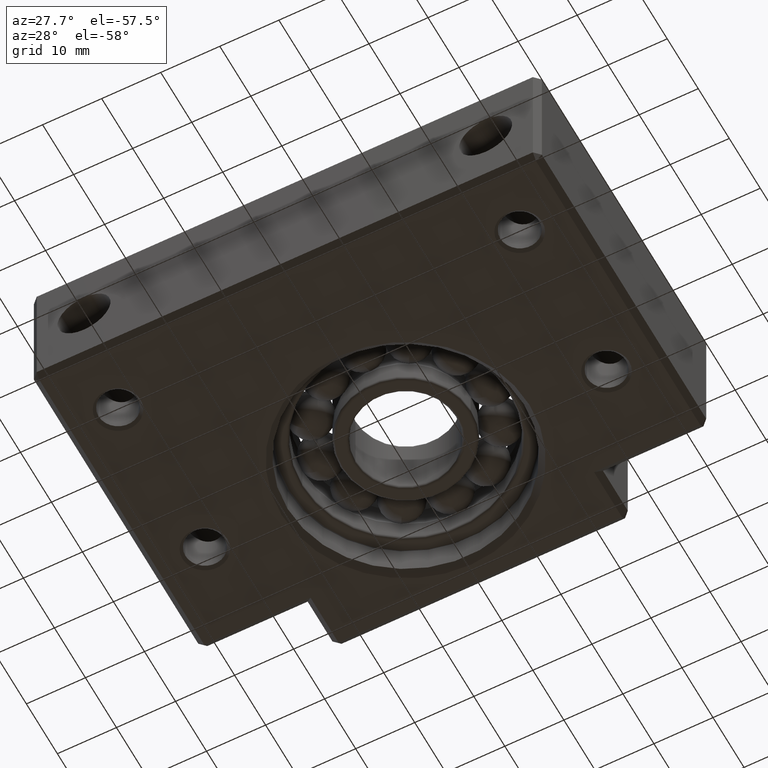
[diagram: clean part render]
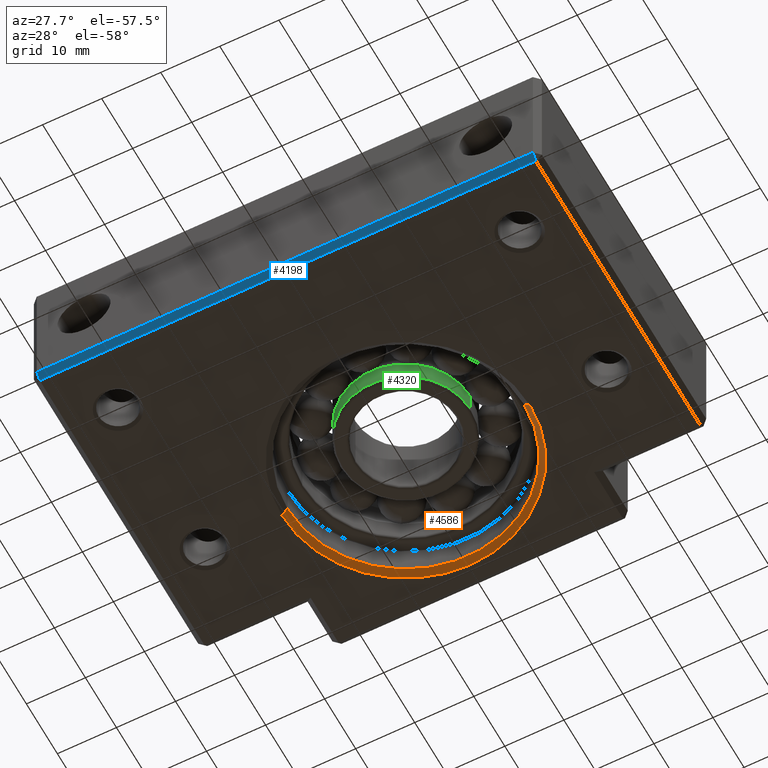
[diagram: same view with three faces highlighted in distinct colors, each labeled with its STEP entity id]
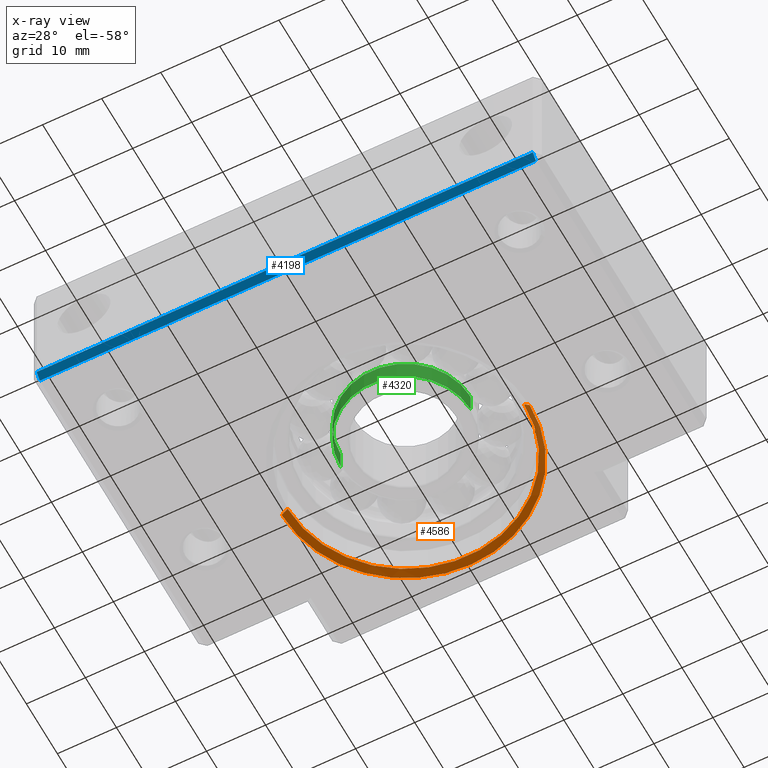
[diagram: x-ray of the same camera — body ghosted, the three highlighted faces saturated]
A machine part, auxiliary view with three faces highlighted in distinct colors.
The next image is the same camera in x-ray (body ghosted, the three faces saturated) — at least one of them is partly hidden behind the body in this view.
Their STEP definitions:

[orange] entity #4586 — the highlighted conical surface has half-angle 45 deg.
#1787 = DIRECTION ( 'NONE',  ( 1.000000000000000000, 0.0000000000000000000, 0.0000000000000000000 ) ) ;
#1788 = DIRECTION ( 'NONE',  ( -0.0000000000000000000, -0.0000000000000000000, -1.000000000000000000 ) ) ;
#1789 = CARTESIAN_POINT ( 'NONE',  ( 1.234791104884921900E-014, 39.00000000000000700, -10.50000000000000200 ) ) ;
#1790 = AXIS2_PLACEMENT_3D ( 'NONE', #1789, #1788, #1787 ) ;
#1791 = CIRCLE ( 'NONE', #1790, 20.00000000000000700 ) ;
#1974 = CARTESIAN_POINT ( 'NONE',  ( -19.99999999999999300, 39.00000000000000700, -10.50000000000000200 ) ) ;
#1975 = CARTESIAN_POINT ( 'NONE',  ( 20.00000000000002100, 39.00000000000000700, -10.50000000000000200 ) ) ;
#1998 = CARTESIAN_POINT ( 'NONE',  ( 21.00000000000001100, 39.00000000000000700, -11.50000000000000000 ) ) ;
#2190 = DIRECTION ( 'NONE',  ( 1.000000000000000000, 0.0000000000000000000, 0.0000000000000000000 ) ) ;
#2191 = DIRECTION ( 'NONE',  ( -0.0000000000000000000, 0.0000000000000000000, 1.000000000000000000 ) ) ;
#2192 = CARTESIAN_POINT ( 'NONE',  ( 1.234791104884921900E-014, 39.00000000000000700, -11.50000000000000000 ) ) ;
#2193 = AXIS2_PLACEMENT_3D ( 'NONE', #2192, #2191, #2190 ) ;
#2194 = CIRCLE ( 'NONE', #2193, 20.99999999999999600 ) ;
#3141 = DIRECTION ( 'NONE',  ( -1.000000000000000000, 0.0000000000000000000, 0.0000000000000000000 ) ) ;
#3142 = DIRECTION ( 'NONE',  ( -0.0000000000000000000, -0.0000000000000000000, -1.000000000000000000 ) ) ;
#3143 = CARTESIAN_POINT ( 'NONE',  ( 1.234791104884921900E-014, 39.00000000000000700, -11.50000000000000000 ) ) ;
#3144 = AXIS2_PLACEMENT_3D ( 'NONE', #3143, #3142, #3141 ) ;
#3145 = CONICAL_SURFACE ( 'NONE', #3144, 20.99999999999999600, 0.7853981633974447300 ) ;
#3150 = FACE_OUTER_BOUND ( 'NONE', #4580, .T. ) ;
#3179 = DIRECTION ( 'NONE',  ( 0.7071067811865451300, 8.659274570719325800E-017, -0.7071067811865500200 ) ) ;
#3180 = VECTOR ( 'NONE', #3179, 1000.000000000000100 ) ;
#3182 = CARTESIAN_POINT ( 'NONE',  ( 21.00000000000001100, 39.00000000000000700, -11.50000000000000000 ) ) ;
#3188 = LINE ( 'NONE', #3182, #3180 ) ;
#3268 = DIRECTION ( 'NONE',  ( -0.7071067811865451300, 0.0000000000000000000, -0.7071067811865500200 ) ) ;
#3269 = VECTOR ( 'NONE', #3268, 1000.000000000000100 ) ;
#3270 = CARTESIAN_POINT ( 'NONE',  ( -20.99999999999998200, 39.00000000000000700, -11.50000000000000000 ) ) ;
#3271 = LINE ( 'NONE', #3270, #3269 ) ;
#3278 = CARTESIAN_POINT ( 'NONE',  ( -20.99999999999998200, 39.00000000000000700, -11.50000000000000000 ) ) ;
#3835 = EDGE_CURVE ( 'NONE', #3929, #3928, #1791, .T. ) ;
#3915 = VERTEX_POINT ( 'NONE', #1998 ) ;
#3928 = VERTEX_POINT ( 'NONE', #1975 ) ;
#3929 = VERTEX_POINT ( 'NONE', #1974 ) ;
#4029 = EDGE_CURVE ( 'NONE', #3915, #4661, #2194, .T. ) ;
#4580 = EDGE_LOOP ( 'NONE', ( #4581, #4583, #4584, #4582 ) ) ;
#4581 = ORIENTED_EDGE ( 'NONE', *, *, #4606, .F. ) ;
#4582 = ORIENTED_EDGE ( 'NONE', *, *, #4029, .F. ) ;
#4583 = ORIENTED_EDGE ( 'NONE', *, *, #3835, .F. ) ;
#4584 = ORIENTED_EDGE ( 'NONE', *, *, #4672, .T. ) ;
#4586 = ADVANCED_FACE ( 'NONE', ( #3150 ), #3145, .F. ) ;
#4606 = EDGE_CURVE ( 'NONE', #3928, #3915, #3188, .T. ) ;
#4661 = VERTEX_POINT ( 'NONE', #3278 ) ;
#4672 = EDGE_CURVE ( 'NONE', #3929, #4661, #3271, .T. ) ;

[blue] entity #4198 — the highlighted planar face has unit normal (-0, 0.7071, 0.7071).
#1897 = VECTOR ( 'NONE', #1898, 1000.000000000000000 ) ;
#1898 = DIRECTION ( 'NONE',  ( -1.000000000000000000, -1.224646799147353200E-016, 0.0000000000000000000 ) ) ;
#2130 = CARTESIAN_POINT ( 'NONE',  ( -42.99999999999998600, 1.000000000000000900, -11.50000000000000000 ) ) ;
#2131 = LINE ( 'NONE', #2130, #1897 ) ;
#2137 = CARTESIAN_POINT ( 'NONE',  ( 42.00000000000000700, 1.000000000000011300, -11.50000000000000000 ) ) ;
#2138 = CARTESIAN_POINT ( 'NONE',  ( -41.99999999999997900, 1.000000000000001100, -11.50000000000000000 ) ) ;
#2266 = CARTESIAN_POINT ( 'NONE',  ( 42.00000000000000700, 1.040949779275250000E-014, -10.50000000000001200 ) ) ;
#2327 = CARTESIAN_POINT ( 'NONE',  ( -41.99999999999999300, 1.224646799147337200E-016, -10.50000000000001200 ) ) ;
#2328 = DIRECTION ( 'NONE',  ( 1.000000000000000000, 1.224646799147353200E-016, 0.0000000000000000000 ) ) ;
#2329 = VECTOR ( 'NONE', #2328, 1000.000000000000000 ) ;
#2330 = CARTESIAN_POINT ( 'NONE',  ( -42.99999999999998600, 0.0000000000000000000, -10.50000000000001200 ) ) ;
#2331 = LINE ( 'NONE', #2330, #2329 ) ;
#2386 = DIRECTION ( 'NONE',  ( 1.196099074440451100E-016, -0.7071067811865524600, 0.7071067811865426900 ) ) ;
#2387 = VECTOR ( 'NONE', #2386, 1000.000000000000000 ) ;
#2388 = CARTESIAN_POINT ( 'NONE',  ( 42.00000000000000700, 1.040949779275250000E-014, -10.50000000000001200 ) ) ;
#2392 = LINE ( 'NONE', #2388, #2387 ) ;
#2402 = DIRECTION ( 'NONE',  ( 0.0000000000000000000, -0.7071067811865524600, 0.7071067811865426900 ) ) ;
#2403 = DIRECTION ( 'NONE',  ( -8.659560562354873700E-017, 0.7071067811865426900, 0.7071067811865524600 ) ) ;
#2404 = CARTESIAN_POINT ( 'NONE',  ( -42.99999999999998600, 0.0000000000000000000, -10.50000000000001200 ) ) ;
#2405 = AXIS2_PLACEMENT_3D ( 'NONE', #2404, #2403, #2402 ) ;
#2406 = FACE_OUTER_BOUND ( 'NONE', #4169, .T. ) ;
#2412 = PLANE ( 'NONE',  #2405 ) ;
#2418 = DIRECTION ( 'NONE',  ( -9.969184144389529000E-015, -0.7071067811865525700, 0.7071067811865425800 ) ) ;
#2419 = VECTOR ( 'NONE', #2418, 999.9999999999998900 ) ;
#2420 = CARTESIAN_POINT ( 'NONE',  ( -41.99999999999999300, 1.224646799147337200E-016, -10.50000000000001200 ) ) ;
#2426 = LINE ( 'NONE', #2420, #2419 ) ;
#4021 = VERTEX_POINT ( 'NONE', #2138 ) ;
#4023 = VERTEX_POINT ( 'NONE', #2137 ) ;
#4026 = EDGE_CURVE ( 'NONE', #4023, #4021, #2131, .T. ) ;
#4113 = VERTEX_POINT ( 'NONE', #2266 ) ;
#4117 = EDGE_CURVE ( 'NONE', #4118, #4113, #2331, .T. ) ;
#4118 = VERTEX_POINT ( 'NONE', #2327 ) ;
#4164 = EDGE_CURVE ( 'NONE', #4023, #4113, #2392, .T. ) ;
#4169 = EDGE_LOOP ( 'NONE', ( #4187, #4191, #4189, #4190 ) ) ;
#4187 = ORIENTED_EDGE ( 'NONE', *, *, #4164, .T. ) ;
#4188 = EDGE_CURVE ( 'NONE', #4021, #4118, #2426, .T. ) ;
#4189 = ORIENTED_EDGE ( 'NONE', *, *, #4188, .F. ) ;
#4190 = ORIENTED_EDGE ( 'NONE', *, *, #4026, .F. ) ;
#4191 = ORIENTED_EDGE ( 'NONE', *, *, #4117, .F. ) ;
#4198 = ADVANCED_FACE ( 'NONE', ( #2406 ), #2412, .F. ) ;

[green] entity #4320 — the highlighted cylindrical surface (partial cylindrical patch) has radius 11 mm, axis along (-0, -0, 1).
#1670 = CARTESIAN_POINT ( 'NONE',  ( -10.99999999999998800, 39.00000000000000700, -5.400000000000000400 ) ) ;
#1672 = CARTESIAN_POINT ( 'NONE',  ( -10.99999999999998800, 39.00000000000000700, -1.870828693386963800 ) ) ;
#1673 = DIRECTION ( 'NONE',  ( -0.0000000000000000000, -0.0000000000000000000, 1.000000000000000000 ) ) ;
#1674 = VECTOR ( 'NONE', #1673, 1000.000000000000000 ) ;
#1675 = CARTESIAN_POINT ( 'NONE',  ( -10.99999999999998800, 39.00000000000000700, 8.839432060501899000 ) ) ;
#1676 = LINE ( 'NONE', #1675, #1674 ) ;
#2104 = CARTESIAN_POINT ( 'NONE',  ( 11.00000000000001100, 39.00000000000000700, -5.400000000000000400 ) ) ;
#2156 = DIRECTION ( 'NONE',  ( -0.0000000000000000000, -0.0000000000000000000, 1.000000000000000000 ) ) ;
#2157 = VECTOR ( 'NONE', #2156, 1000.000000000000000 ) ;
#2158 = CARTESIAN_POINT ( 'NONE',  ( 11.00000000000001100, 39.00000000000000700, 8.839432060501899000 ) ) ;
#2159 = LINE ( 'NONE', #2158, #2157 ) ;
#2530 = DIRECTION ( 'NONE',  ( 1.000000000000000000, 0.0000000000000000000, 0.0000000000000000000 ) ) ;
#2531 = DIRECTION ( 'NONE',  ( -0.0000000000000000000, -0.0000000000000000000, 1.000000000000000000 ) ) ;
#2532 = CARTESIAN_POINT ( 'NONE',  ( 1.255275776586078800E-014, 39.00000000000000700, -1.870828693386963800 ) ) ;
#2533 = AXIS2_PLACEMENT_3D ( 'NONE', #2532, #2531, #2530 ) ;
#2538 = CIRCLE ( 'NONE', #2533, 11.00000000000000000 ) ;
#2628 = DIRECTION ( 'NONE',  ( 1.000000000000000000, 0.0000000000000000000, 0.0000000000000000000 ) ) ;
#2629 = DIRECTION ( 'NONE',  ( -0.0000000000000000000, -0.0000000000000000000, 1.000000000000000000 ) ) ;
#2630 = CARTESIAN_POINT ( 'NONE',  ( 1.255275776586078800E-014, 39.00000000000000700, -5.400000000000000400 ) ) ;
#2631 = AXIS2_PLACEMENT_3D ( 'NONE', #2630, #2629, #2628 ) ;
#2632 = DIRECTION ( 'NONE',  ( 1.000000000000000000, 0.0000000000000000000, 0.0000000000000000000 ) ) ;
#2633 = DIRECTION ( 'NONE',  ( -0.0000000000000000000, -0.0000000000000000000, 1.000000000000000000 ) ) ;
#2634 = CARTESIAN_POINT ( 'NONE',  ( 1.255275776586078800E-014, 39.00000000000000700, 8.839432060501899000 ) ) ;
#2635 = AXIS2_PLACEMENT_3D ( 'NONE', #2634, #2633, #2632 ) ;
#2636 = CIRCLE ( 'NONE', #2631, 11.00000000000000000 ) ;
#2637 = CYLINDRICAL_SURFACE ( 'NONE', #2635, 11.00000000000000000 ) ;
#2642 = FACE_OUTER_BOUND ( 'NONE', #4319, .T. ) ;
#3385 = CARTESIAN_POINT ( 'NONE',  ( 11.00000000000001100, 39.00000000000000700, -1.870828693386963800 ) ) ;
#3748 = EDGE_CURVE ( 'NONE', #3750, #3749, #1676, .T. ) ;
#3749 = VERTEX_POINT ( 'NONE', #1672 ) ;
#3750 = VERTEX_POINT ( 'NONE', #1670 ) ;
#4003 = VERTEX_POINT ( 'NONE', #2104 ) ;
#4007 = EDGE_CURVE ( 'NONE', #4003, #4762, #2159, .T. ) ;
#4261 = EDGE_CURVE ( 'NONE', #3749, #4762, #2538, .T. ) ;
#4319 = EDGE_LOOP ( 'NONE', ( #4321, #4362, #4355, #4356 ) ) ;
#4320 = ADVANCED_FACE ( 'NONE', ( #2642 ), #2637, .T. ) ;
#4321 = ORIENTED_EDGE ( 'NONE', *, *, #3748, .F. ) ;
#4322 = EDGE_CURVE ( 'NONE', #3750, #4003, #2636, .T. ) ;
#4355 = ORIENTED_EDGE ( 'NONE', *, *, #4007, .T. ) ;
#4356 = ORIENTED_EDGE ( 'NONE', *, *, #4261, .F. ) ;
#4362 = ORIENTED_EDGE ( 'NONE', *, *, #4322, .T. ) ;
#4762 = VERTEX_POINT ( 'NONE', #3385 ) ;